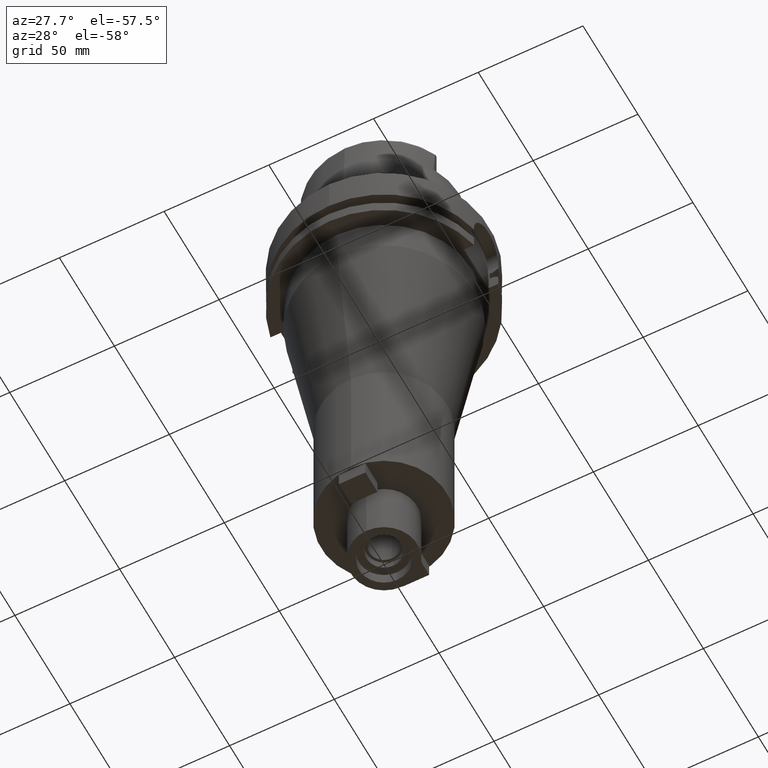
[diagram: clean part render]
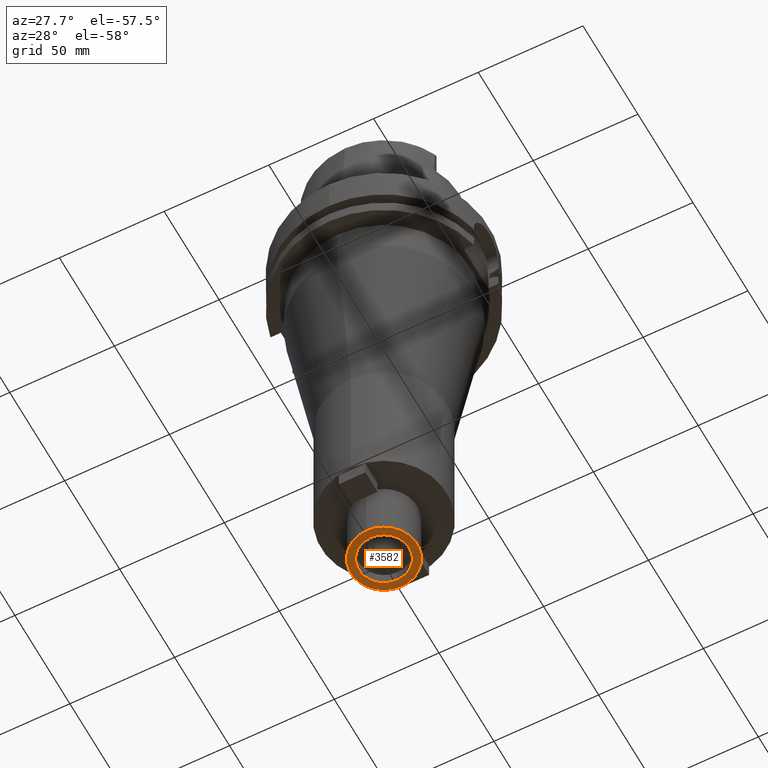
[diagram: same view with one face highlighted and labeled with its STEP entity id]
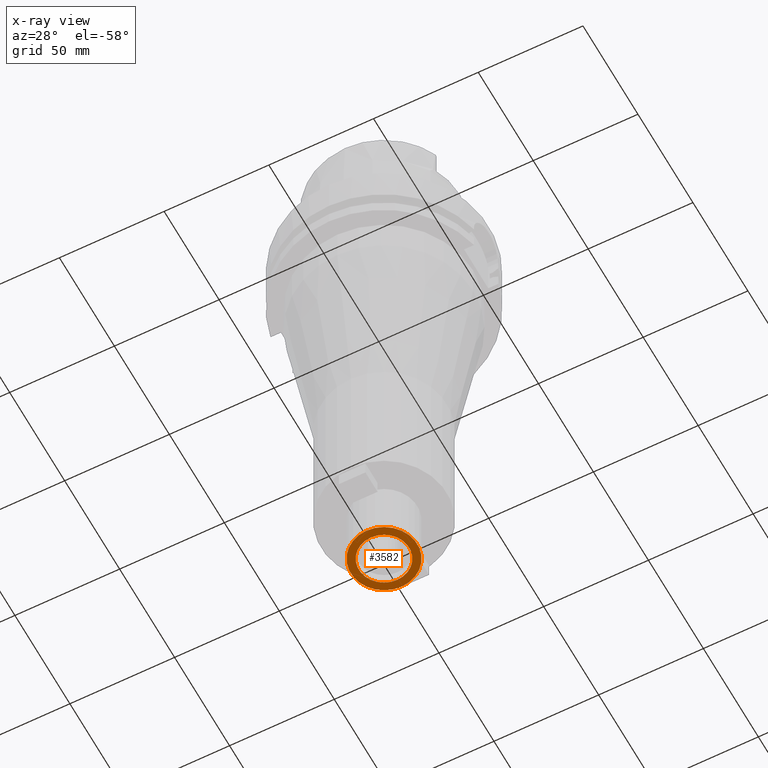
[diagram: x-ray of the same camera — body ghosted, the highlighted face saturated]
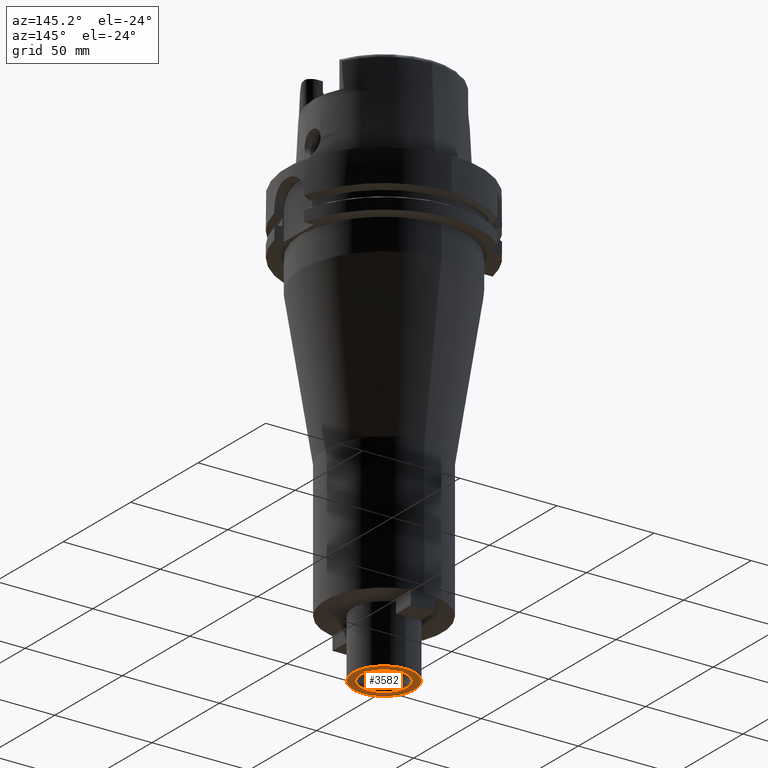
[diagram: same view with one face highlighted and labeled with its STEP entity id]
A machine part, auxiliary view. The second image highlights one B-rep face of the part: STEP entity #3582.
The next image is the same camera in x-ray: the body ghosted, the highlighted face saturated — about 0% of this face is hidden behind the body in this view.
A second angle (auxiliary view) of the same face is appended — the face is thin or edge-on in the first view.
In plain terms, the highlighted planar face has unit normal (0, 0, 1).
Its self-contained STEP definition (entity closure, byte-faithful):
#1083=CARTESIAN_POINT('',(0.E0,0.E0,-2.25E2));
#1084=DIRECTION('',(0.E0,0.E0,1.E0));
#1085=DIRECTION('',(0.E0,-1.E0,0.E0));
#1086=AXIS2_PLACEMENT_3D('',#1083,#1084,#1085);
#1091=CARTESIAN_POINT('',(0.E0,0.E0,-2.25E2));
#1092=DIRECTION('',(0.E0,0.E0,1.E0));
#1093=DIRECTION('',(0.E0,1.E0,0.E0));
#1094=AXIS2_PLACEMENT_3D('',#1091,#1092,#1093);
#1099=CARTESIAN_POINT('',(0.E0,0.E0,-2.25E2));
#1100=DIRECTION('',(0.E0,0.E0,-1.E0));
#1101=DIRECTION('',(0.E0,-1.E0,0.E0));
#1102=AXIS2_PLACEMENT_3D('',#1099,#1100,#1101);
#1107=CARTESIAN_POINT('',(0.E0,0.E0,-2.25E2));
#1108=DIRECTION('',(0.E0,0.E0,-1.E0));
#1109=DIRECTION('',(0.E0,1.E0,0.E0));
#1110=AXIS2_PLACEMENT_3D('',#1107,#1108,#1109);
#2580=CARTESIAN_POINT('',(0.E0,1.2E1,-2.25E2));
#2581=VERTEX_POINT('',#2580);
#2582=CARTESIAN_POINT('',(0.E0,-1.2E1,-2.25E2));
#2583=VERTEX_POINT('',#2582);
#2584=CARTESIAN_POINT('',(0.E0,-1.5875E1,-2.25E2));
#2585=CARTESIAN_POINT('',(0.E0,1.5875E1,-2.25E2));
#2586=VERTEX_POINT('',#2584);
#2587=VERTEX_POINT('',#2585);
#3567=CARTESIAN_POINT('',(0.E0,0.E0,-2.25E2));
#3568=DIRECTION('',(0.E0,0.E0,1.E0));
#3569=DIRECTION('',(0.E0,1.E0,0.E0));
#3570=AXIS2_PLACEMENT_3D('',#3567,#3568,#3569);
#3571=PLANE('',#3570);
#3573=ORIENTED_EDGE('',*,*,#3572,.T.);
#3575=ORIENTED_EDGE('',*,*,#3574,.T.);
#3576=EDGE_LOOP('',(#3573,#3575));
#3577=FACE_OUTER_BOUND('',#3576,.F.);
#3578=ORIENTED_EDGE('',*,*,#3560,.T.);
#3579=ORIENTED_EDGE('',*,*,#3549,.T.);
#3580=EDGE_LOOP('',(#3578,#3579));
#3581=FACE_BOUND('',#3580,.F.);
#1087=CIRCLE('',#1086,1.5875E1);
#1095=CIRCLE('',#1094,1.5875E1);
#1103=CIRCLE('',#1102,1.2E1);
#1111=CIRCLE('',#1110,1.2E1);
#3549=EDGE_CURVE('',#2581,#2583,#1111,.T.);
#3560=EDGE_CURVE('',#2583,#2581,#1103,.T.);
#3572=EDGE_CURVE('',#2586,#2587,#1087,.T.);
#3574=EDGE_CURVE('',#2587,#2586,#1095,.T.);
#3582=ADVANCED_FACE('',(#3577,#3581),#3571,.F.);